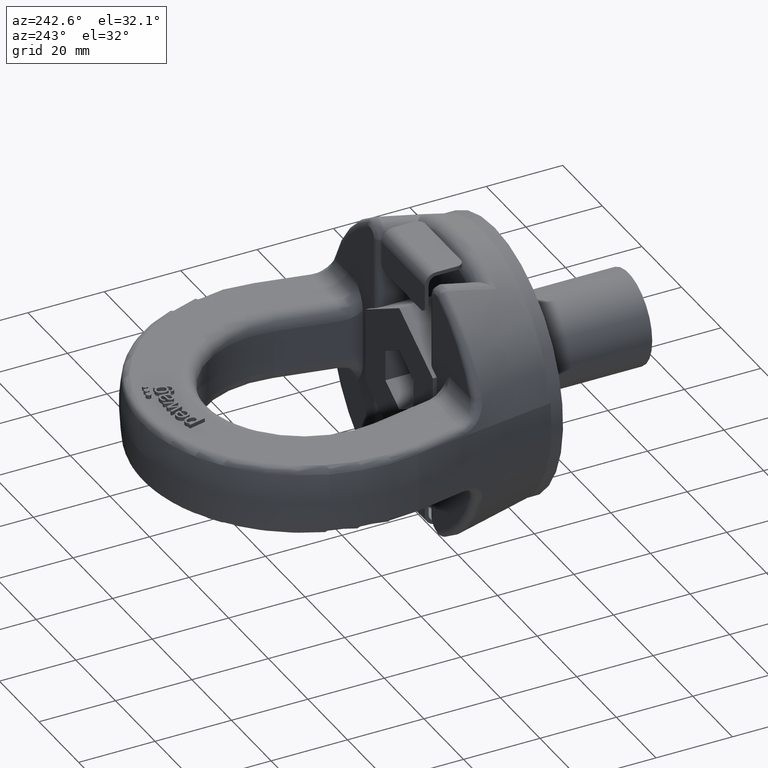
[diagram: clean part render]
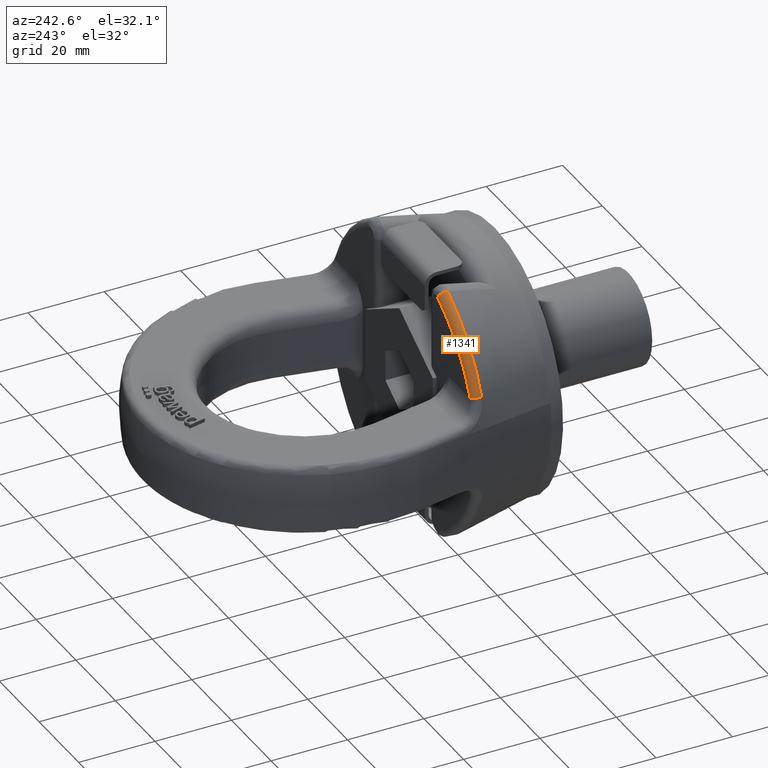
[diagram: same view with one face highlighted and labeled with its STEP entity id]
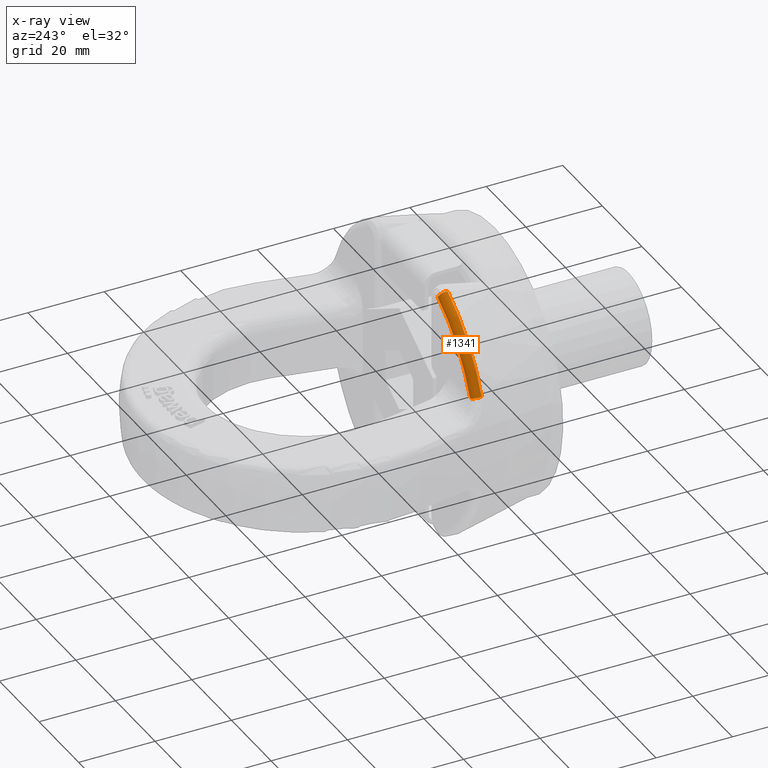
[diagram: x-ray of the same camera — body ghosted, the highlighted face saturated]
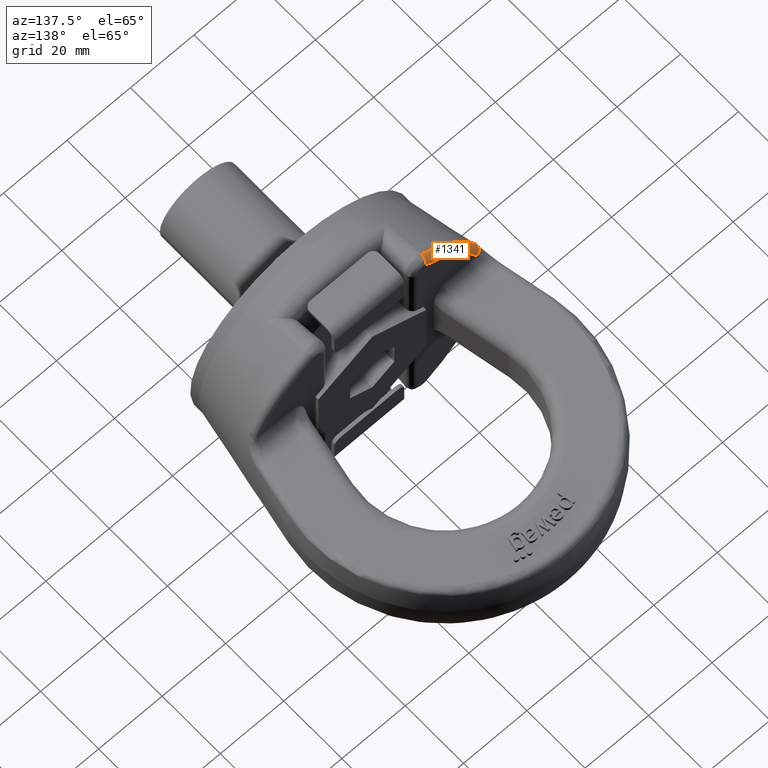
[diagram: same view with one face highlighted and labeled with its STEP entity id]
A machine part, auxiliary view. The second image highlights one B-rep face of the part: STEP entity #1341.
The next image is the same camera in x-ray: the body ghosted, the highlighted face saturated — about 0% of this face is hidden behind the body in this view.
A second angle (auxiliary view) of the same face is appended — the face is thin or edge-on in the first view.
In plain terms, the highlighted toroidal blend (fillet) surface has major radius 36.4807 mm and minor (blend) radius 1.8 mm.
Its self-contained STEP definition (entity closure, byte-faithful):
#1015=TOROIDAL_SURFACE('',#5183,36.4806993214114,1.8);
#1117=FACE_OUTER_BOUND('',#1857,.T.);
#1341=ADVANCED_FACE('',(#1117),#1015,.T.);
#1672=CIRCLE('',#5125,36.4806993214114);
#1683=CIRCLE('',#5141,38.2461693295443);
#1693=CIRCLE('',#5181,1.8);
#1694=CIRCLE('',#5182,1.8);
#1857=EDGE_LOOP('',(#2932,#2933,#2934,#2935));
#2932=ORIENTED_EDGE('',*,*,#4437,.T.);
#2933=ORIENTED_EDGE('',*,*,#4344,.F.);
#2934=ORIENTED_EDGE('',*,*,#4438,.F.);
#2935=ORIENTED_EDGE('',*,*,#4389,.F.);
#3943=VERTEX_POINT('',#6576);
#3956=VERTEX_POINT('',#6629);
#3999=VERTEX_POINT('',#6846);
#4000=VERTEX_POINT('',#6848);
#4344=EDGE_CURVE('',#3956,#3943,#1672,.T.);
#4389=EDGE_CURVE('',#3999,#4000,#1683,.T.);
#4437=EDGE_CURVE('',#3999,#3943,#1693,.T.);
#4438=EDGE_CURVE('',#4000,#3956,#1694,.T.);
#5125=AXIS2_PLACEMENT_3D('',#6630,#5447,#5448);
#5141=AXIS2_PLACEMENT_3D('',#6847,#5495,#5496);
#5181=AXIS2_PLACEMENT_3D('',#7035,#5597,#5598);
#5182=AXIS2_PLACEMENT_3D('',#7060,#5599,#5600);
#5183=AXIS2_PLACEMENT_3D('',#7061,#5601,#5602);
#5447=DIRECTION('',(-4.73865087112791E-16,1.,0.));
#5448=DIRECTION('',(-1.,-4.7551815295346E-16,0.));
#5495=DIRECTION('',(4.73865087112791E-16,-1.,0.));
#5496=DIRECTION('',(1.,4.53567901409874E-16,0.));
#5597=DIRECTION('',(-0.878263868975236,1.50513738049779E-16,-0.478176302688297));
#5598=DIRECTION('',(-0.478176302688298,0.,0.878263868975236));
#5599=DIRECTION('',(-0.370058695450406,-2.7476350880231E-16,-0.929008375592784));
#5600=DIRECTION('',(-0.929008375592784,0.,0.370058695450406));
#5601=DIRECTION('',(-4.73865087112791E-16,1.,0.));
#5602=DIRECTION('',(-1.,-4.53158773671235E-16,0.));
#6576=CARTESIAN_POINT('',(-17.4442059209961,24.,32.0396801289451));
#6629=CARTESIAN_POINT('',(-33.8908752170733,24.,13.5));
#6630=CARTESIAN_POINT('',(-1.91782795696365E-13,24.,0.));
#6846=CARTESIAN_POINT('',(-18.2884118419921,21.8491216017145,33.5902286488475));
#6847=CARTESIAN_POINT('',(-9.74717311471669E-14,21.8491216017146,0.));
#6848=CARTESIAN_POINT('',(-35.5310116414865,21.8491216017145,14.1533275280665));
#7035=CARTESIAN_POINT('',(-17.444205920996,22.2,32.039680128945));
#7060=CARTESIAN_POINT('',(-33.8908752170733,22.2,13.5));
#7061=CARTESIAN_POINT('',(-1.90929838539562E-13,22.2,0.));